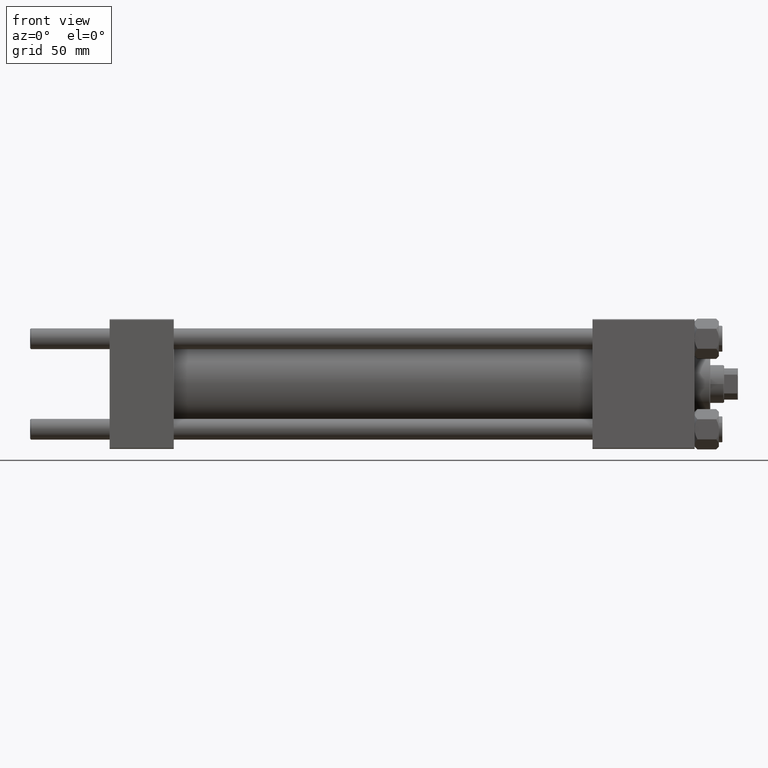
[diagram: clean part render]
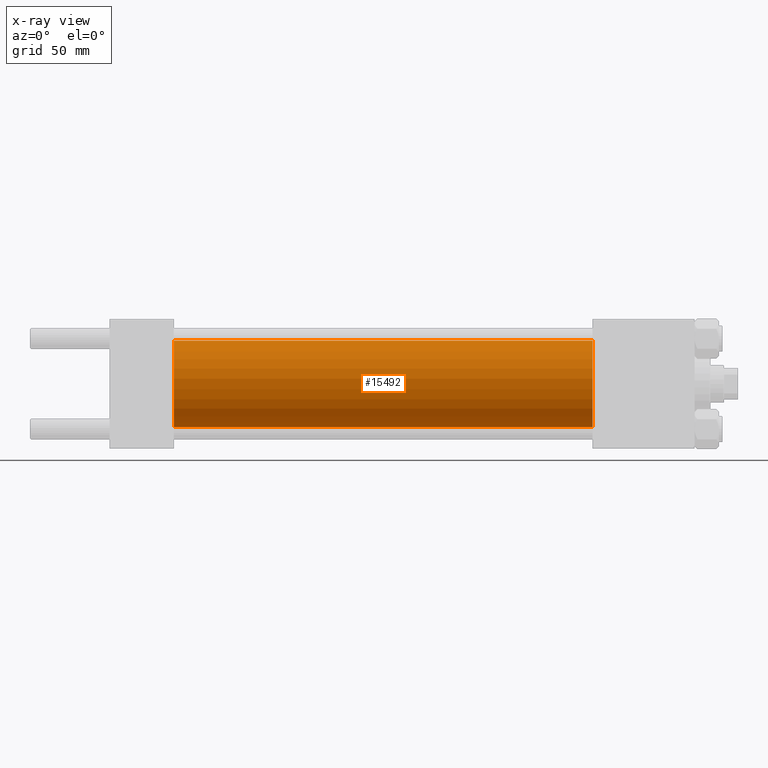
[diagram: x-ray — body ghosted, one internal face saturated and labeled with its STEP entity id]
A machine part, front view, then the same camera in x-ray: the body is ghosted and one INTERNAL B-rep face — a face not visible from any outside direction — is saturated and labeled: STEP entity #15492.
In plain terms, the highlighted cylindrical surface (partial cylindrical patch) has radius 25 mm, axis along (-1, -0, -0).
Its self-contained STEP definition (entity closure, byte-faithful):
#1494 = CIRCLE ( 'NONE', #6297, 25.00000000000000000 ) ;
#3139 = EDGE_CURVE ( 'NONE', #21070, #21339, #14902, .T. ) ;
#3514 = EDGE_CURVE ( 'NONE', #19581, #15915, #21886, .T. ) ;
#6297 = AXIS2_PLACEMENT_3D ( 'NONE', #9432, #24768, #29028 ) ;
#7403 = EDGE_CURVE ( 'NONE', #15915, #21339, #1494, .T. ) ;
#9432 = CARTESIAN_POINT ( 'NONE',  ( 37.00000000000000000, 0.000000000000000000, 0.000000000000000000 ) ) ;
#9508 = CARTESIAN_POINT ( 'NONE',  ( 278.9999999999999432, 0.000000000000000000, 0.000000000000000000 ) ) ;
#10886 = DIRECTION ( 'NONE',  ( 1.000000000000000000, 0.000000000000000000, 0.000000000000000000 ) ) ;
#12769 = ORIENTED_EDGE ( 'NONE', *, *, #3514, .F. ) ;
#13900 = CARTESIAN_POINT ( 'NONE',  ( 278.9999999999999432, 3.061616997868383043E-15, -25.00000000000000000 ) ) ;
#13941 = EDGE_CURVE ( 'NONE', #19581, #21070, #20937, .T. ) ;
#14902 = LINE ( 'NONE', #13900, #21521 ) ;
#15492 = ADVANCED_FACE ( 'NONE', ( #24842 ), #17049, .F. ) ;
#15915 = VERTEX_POINT ( 'NONE', #31714 ) ;
#16110 = CARTESIAN_POINT ( 'NONE',  ( 278.9999999999999432, 0.000000000000000000, 25.00000000000000000 ) ) ;
#17049 = CYLINDRICAL_SURFACE ( 'NONE', #36260, 25.00000000000000000 ) ;
#19581 = VERTEX_POINT ( 'NONE', #16110 ) ;
#20937 = CIRCLE ( 'NONE', #21731, 25.00000000000000000 ) ;
#21070 = VERTEX_POINT ( 'NONE', #42897 ) ;
#21339 = VERTEX_POINT ( 'NONE', #22174 ) ;
#21521 = VECTOR ( 'NONE', #49098, 1000.000000000000000 ) ;
#21731 = AXIS2_PLACEMENT_3D ( 'NONE', #45334, #10886, #41542 ) ;
#21886 = LINE ( 'NONE', #37463, #42469 ) ;
#22174 = CARTESIAN_POINT ( 'NONE',  ( 37.00000000000000000, 3.061616997868383043E-15, -25.00000000000000000 ) ) ;
#24768 = DIRECTION ( 'NONE',  ( 1.000000000000000000, 0.000000000000000000, 0.000000000000000000 ) ) ;
#24842 = FACE_OUTER_BOUND ( 'NONE', #42148, .T. ) ;
#29028 = DIRECTION ( 'NONE',  ( 0.000000000000000000, 0.000000000000000000, -1.000000000000000000 ) ) ;
#31714 = CARTESIAN_POINT ( 'NONE',  ( 37.00000000000000000, 0.000000000000000000, 25.00000000000000000 ) ) ;
#33187 = DIRECTION ( 'NONE',  ( -1.000000000000000000, -0.000000000000000000, -0.000000000000000000 ) ) ;
#35107 = ORIENTED_EDGE ( 'NONE', *, *, #7403, .F. ) ;
#36260 = AXIS2_PLACEMENT_3D ( 'NONE', #9508, #47468, #48460 ) ;
#37463 = CARTESIAN_POINT ( 'NONE',  ( 278.9999999999999432, 0.000000000000000000, 25.00000000000000000 ) ) ;
#41542 = DIRECTION ( 'NONE',  ( 0.000000000000000000, 0.000000000000000000, -1.000000000000000000 ) ) ;
#42148 = EDGE_LOOP ( 'NONE', ( #44140, #49535, #35107, #12769 ) ) ;
#42469 = VECTOR ( 'NONE', #33187, 1000.000000000000000 ) ;
#42897 = CARTESIAN_POINT ( 'NONE',  ( 278.9999999999999432, 3.061616997868383043E-15, -25.00000000000000000 ) ) ;
#44140 = ORIENTED_EDGE ( 'NONE', *, *, #13941, .T. ) ;
#45334 = CARTESIAN_POINT ( 'NONE',  ( 278.9999999999999432, 0.000000000000000000, 0.000000000000000000 ) ) ;
#47468 = DIRECTION ( 'NONE',  ( -1.000000000000000000, -0.000000000000000000, -0.000000000000000000 ) ) ;
#48460 = DIRECTION ( 'NONE',  ( 0.000000000000000000, 0.000000000000000000, 1.000000000000000000 ) ) ;
#49098 = DIRECTION ( 'NONE',  ( -1.000000000000000000, -0.000000000000000000, -0.000000000000000000 ) ) ;
#49535 = ORIENTED_EDGE ( 'NONE', *, *, #3139, .T. ) ;